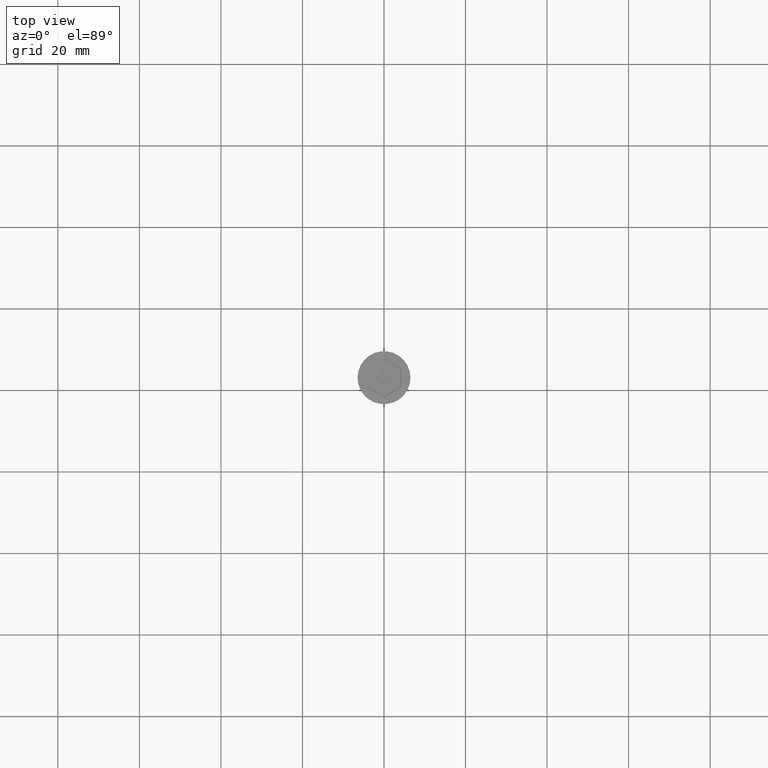
[diagram: clean part render]
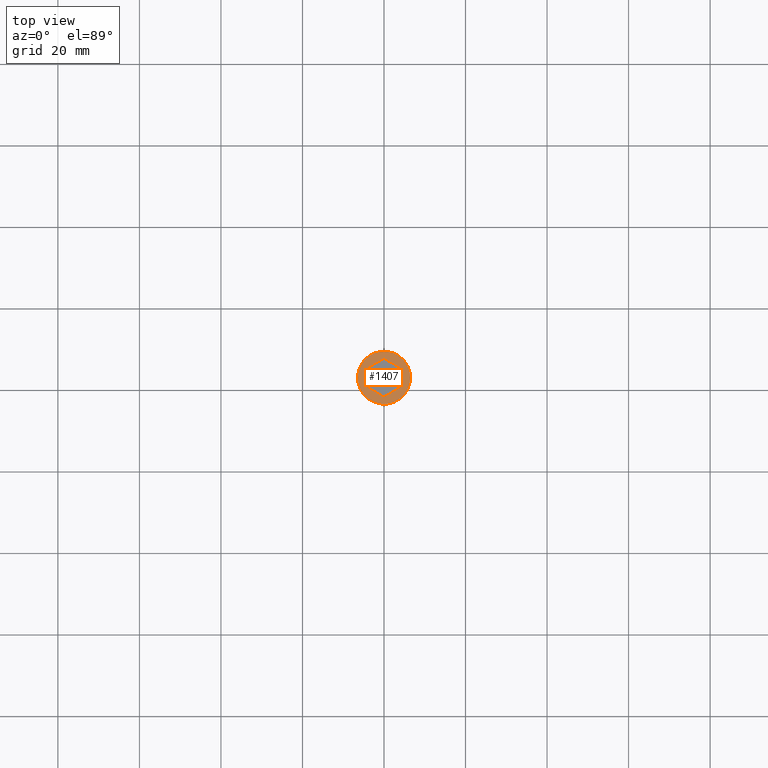
[diagram: same view with one face highlighted and labeled with its STEP entity id]
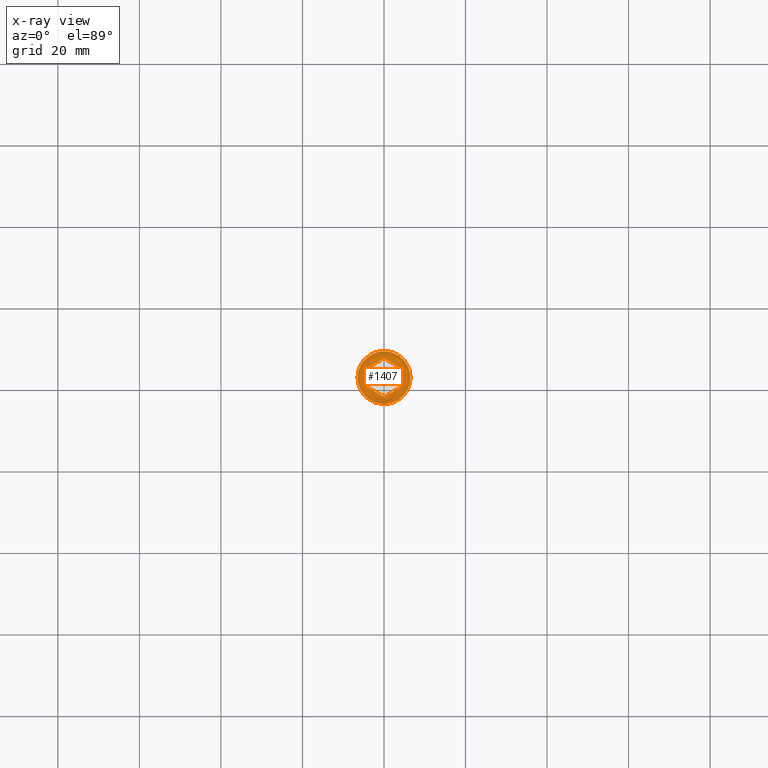
[diagram: x-ray of the same camera — body ghosted, the highlighted face saturated]
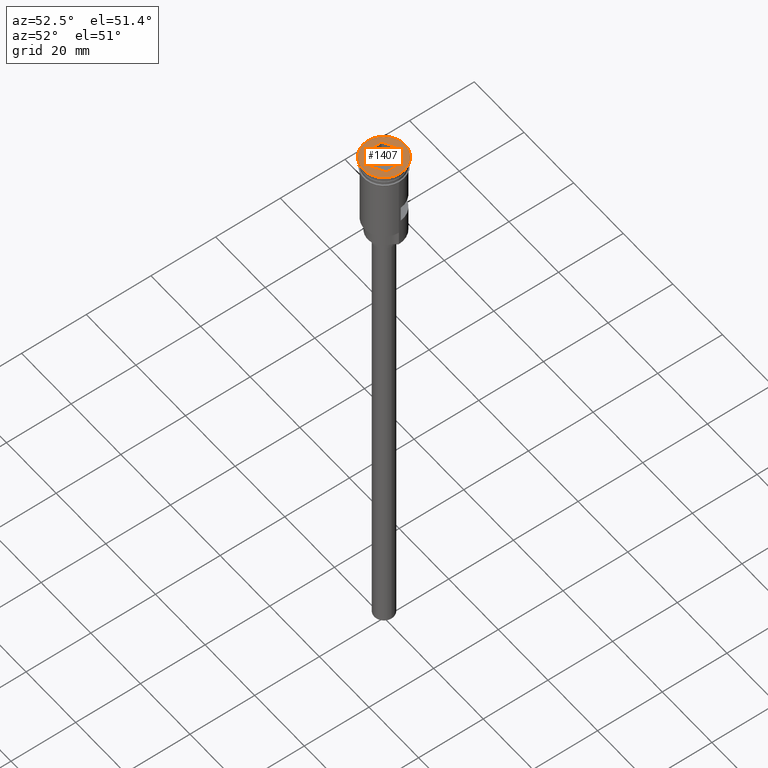
[diagram: same view with one face highlighted and labeled with its STEP entity id]
A machine part, top view. The second image highlights one B-rep face of the part: STEP entity #1407.
The next image is the same camera in x-ray: the body ghosted, the highlighted face saturated — about 0% of this face is hidden behind the body in this view.
A second angle (auxiliary view) of the same face is appended — the face is thin or edge-on in the first view.
In plain terms, the highlighted planar face has unit normal (0, -0, 1).
Its self-contained STEP definition (entity closure, byte-faithful):
#17 = VECTOR ( 'NONE', #1327, 1000.000000000000114 ) ;
#19 = CIRCLE ( 'NONE', #439, 6.500000000000000000 ) ;
#35 = EDGE_CURVE ( 'NONE', #1595, #1406, #464, .T. ) ;
#41 = CARTESIAN_POINT ( 'NONE',  ( 0.04999999999998334249, -4.705404693895418156, 0.000000000000000000 ) ) ;
#43 = EDGE_CURVE ( 'NONE', #625, #270, #836, .T. ) ;
#48 = ORIENTED_EDGE ( 'NONE', *, *, #396, .T. ) ;
#60 = EDGE_LOOP ( 'NONE', ( #834, #1064 ) ) ;
#155 = CARTESIAN_POINT ( 'NONE',  ( 0.000000000000000000, 0.000000000000000000, 0.000000000000000000 ) ) ;
#226 = DIRECTION ( 'NONE',  ( -0.8660254037844388186, 0.4999999999999997780, 0.000000000000000000 ) ) ;
#228 = DIRECTION ( 'NONE',  ( 0.000000000000000000, -1.000000000000000000, -0.000000000000000000 ) ) ;
#261 = VECTOR ( 'NONE', #1152, 1000.000000000000114 ) ;
#270 = VERTEX_POINT ( 'NONE', #424 ) ;
#284 = VECTOR ( 'NONE', #687, 1000.000000000000000 ) ;
#291 = CARTESIAN_POINT ( 'NONE',  ( -4.099999999999965006, -2.367136103677445202, 0.000000000000000000 ) ) ;
#327 = CARTESIAN_POINT ( 'NONE',  ( 0.000000000000000000, 0.000000000000000000, 0.000000000000000000 ) ) ;
#336 = VECTOR ( 'NONE', #907, 1000.000000000000000 ) ;
#350 = EDGE_CURVE ( 'NONE', #270, #625, #19, .T. ) ;
#372 = CARTESIAN_POINT ( 'NONE',  ( -4.049999999999982059, -2.396003617136916564, 0.000000000000000000 ) ) ;
#385 = DIRECTION ( 'NONE',  ( 1.000000000000000000, 0.000000000000000000, 0.000000000000000000 ) ) ;
#396 = EDGE_CURVE ( 'NONE', #999, #1595, #1542, .T. ) ;
#422 = VERTEX_POINT ( 'NONE', #1516 ) ;
#424 = CARTESIAN_POINT ( 'NONE',  ( -6.500000000000000000, 7.960204194457795477E-16, 0.000000000000000000 ) ) ;
#428 = CARTESIAN_POINT ( 'NONE',  ( -4.099999999999965006, 2.367136103677443870, 0.000000000000000000 ) ) ;
#439 = AXIS2_PLACEMENT_3D ( 'NONE', #327, #1114, #1330 ) ;
#452 = ORIENTED_EDGE ( 'NONE', *, *, #35, .T. ) ;
#464 = LINE ( 'NONE', #702, #17 ) ;
#470 = LINE ( 'NONE', #372, #1151 ) ;
#477 = CARTESIAN_POINT ( 'NONE',  ( 0.000000000000000000, 0.000000000000000000, 0.000000000000000000 ) ) ;
#514 = FACE_BOUND ( 'NONE', #631, .T. ) ;
#538 = CARTESIAN_POINT ( 'NONE',  ( -4.099999999999965006, 2.309401076758502480, 0.000000000000000000 ) ) ;
#616 = AXIS2_PLACEMENT_3D ( 'NONE', #477, #1456, #1474 ) ;
#625 = VERTEX_POINT ( 'NONE', #1200 ) ;
#631 = EDGE_LOOP ( 'NONE', ( #48, #452, #1263, #683, #1291, #1381 ) ) ;
#640 = LINE ( 'NONE', #41, #261 ) ;
#645 = AXIS2_PLACEMENT_3D ( 'NONE', #155, #783, #385 ) ;
#683 = ORIENTED_EDGE ( 'NONE', *, *, #1146, .T. ) ;
#687 = DIRECTION ( 'NONE',  ( 0.8660254037844387076, -0.4999999999999998890, 0.000000000000000000 ) ) ;
#702 = CARTESIAN_POINT ( 'NONE',  ( -0.04999999999998216288, 4.705404693895418156, 0.000000000000000000 ) ) ;
#762 = CARTESIAN_POINT ( 'NONE',  ( 2.171479865133627081E-15, 4.734272207354890405, 0.000000000000000000 ) ) ;
#783 = DIRECTION ( 'NONE',  ( 0.000000000000000000, -0.000000000000000000, 1.000000000000000000 ) ) ;
#803 = LINE ( 'NONE', #1292, #284 ) ;
#834 = ORIENTED_EDGE ( 'NONE', *, *, #43, .T. ) ;
#836 = CIRCLE ( 'NONE', #616, 6.500000000000000000 ) ;
#864 = VERTEX_POINT ( 'NONE', #1287 ) ;
#907 = DIRECTION ( 'NONE',  ( 0.000000000000000000, 1.000000000000000000, 0.000000000000000000 ) ) ;
#942 = EDGE_CURVE ( 'NONE', #1406, #422, #803, .T. ) ;
#999 = VERTEX_POINT ( 'NONE', #291 ) ;
#1018 = PLANE ( 'NONE',  #645 ) ;
#1064 = ORIENTED_EDGE ( 'NONE', *, *, #350, .T. ) ;
#1114 = DIRECTION ( 'NONE',  ( -0.000000000000000000, -0.000000000000000000, 1.000000000000000000 ) ) ;
#1124 = VECTOR ( 'NONE', #228, 1000.000000000000000 ) ;
#1129 = FACE_OUTER_BOUND ( 'NONE', #60, .T. ) ;
#1139 = CARTESIAN_POINT ( 'NONE',  ( 4.099999999999965006, -2.309401076758503368, 0.000000000000000000 ) ) ;
#1146 = EDGE_CURVE ( 'NONE', #422, #1163, #1267, .T. ) ;
#1151 = VECTOR ( 'NONE', #226, 1000.000000000000114 ) ;
#1152 = DIRECTION ( 'NONE',  ( -0.8660254037844385966, -0.5000000000000001110, 0.000000000000000000 ) ) ;
#1163 = VERTEX_POINT ( 'NONE', #1198 ) ;
#1197 = EDGE_CURVE ( 'NONE', #1163, #864, #640, .T. ) ;
#1198 = CARTESIAN_POINT ( 'NONE',  ( 4.099999999999965006, -2.367136103677444314, 0.000000000000000000 ) ) ;
#1200 = CARTESIAN_POINT ( 'NONE',  ( 6.500000000000000000, 0.000000000000000000, 0.000000000000000000 ) ) ;
#1263 = ORIENTED_EDGE ( 'NONE', *, *, #942, .T. ) ;
#1267 = LINE ( 'NONE', #1139, #1124 ) ;
#1287 = CARTESIAN_POINT ( 'NONE',  ( 6.297488933682852254E-16, -4.734272207354889517, 0.000000000000000000 ) ) ;
#1291 = ORIENTED_EDGE ( 'NONE', *, *, #1197, .T. ) ;
#1292 = CARTESIAN_POINT ( 'NONE',  ( 4.049999999999982947, 2.396003617136917896, 0.000000000000000000 ) ) ;
#1327 = DIRECTION ( 'NONE',  ( 0.8660254037844385966, 0.5000000000000001110, 0.000000000000000000 ) ) ;
#1330 = DIRECTION ( 'NONE',  ( 1.000000000000000000, 0.000000000000000000, 0.000000000000000000 ) ) ;
#1381 = ORIENTED_EDGE ( 'NONE', *, *, #1395, .T. ) ;
#1395 = EDGE_CURVE ( 'NONE', #864, #999, #470, .T. ) ;
#1406 = VERTEX_POINT ( 'NONE', #762 ) ;
#1407 = ADVANCED_FACE ( 'NONE', ( #514, #1129 ), #1018, .T. ) ;
#1456 = DIRECTION ( 'NONE',  ( -0.000000000000000000, -0.000000000000000000, 1.000000000000000000 ) ) ;
#1474 = DIRECTION ( 'NONE',  ( 1.000000000000000000, 0.000000000000000000, 0.000000000000000000 ) ) ;
#1516 = CARTESIAN_POINT ( 'NONE',  ( 4.099999999999965006, 2.367136103677447423, 0.000000000000000000 ) ) ;
#1542 = LINE ( 'NONE', #538, #336 ) ;
#1595 = VERTEX_POINT ( 'NONE', #428 ) ;